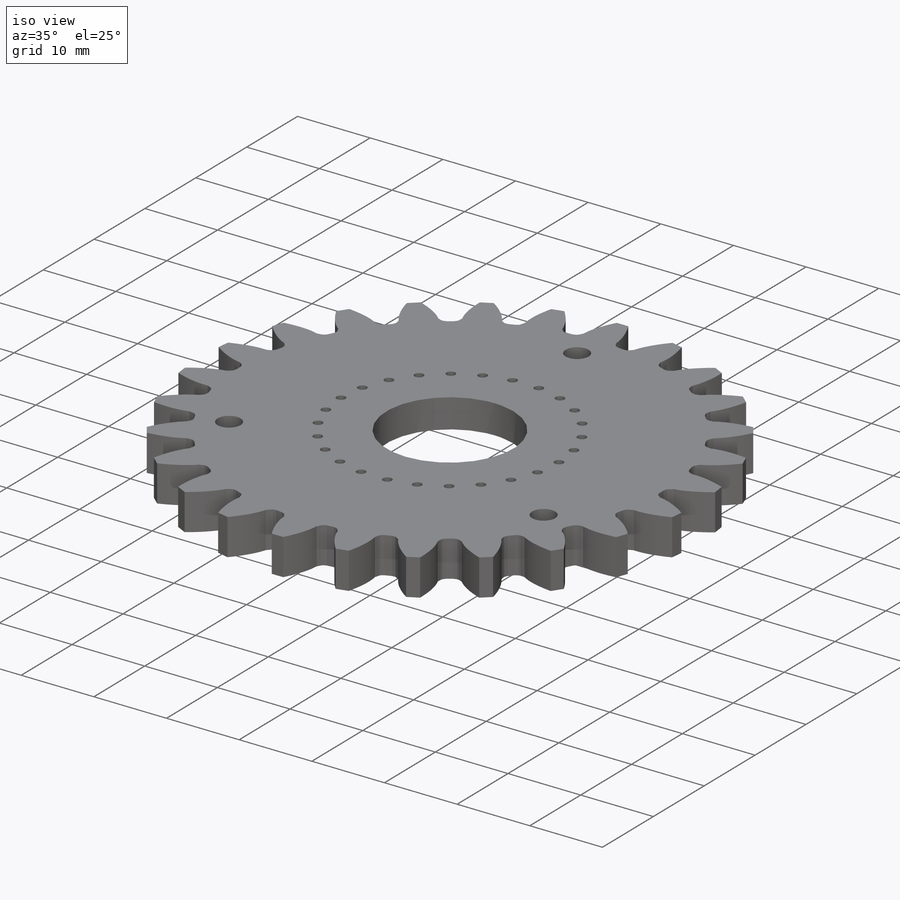
[diagram: iso view]
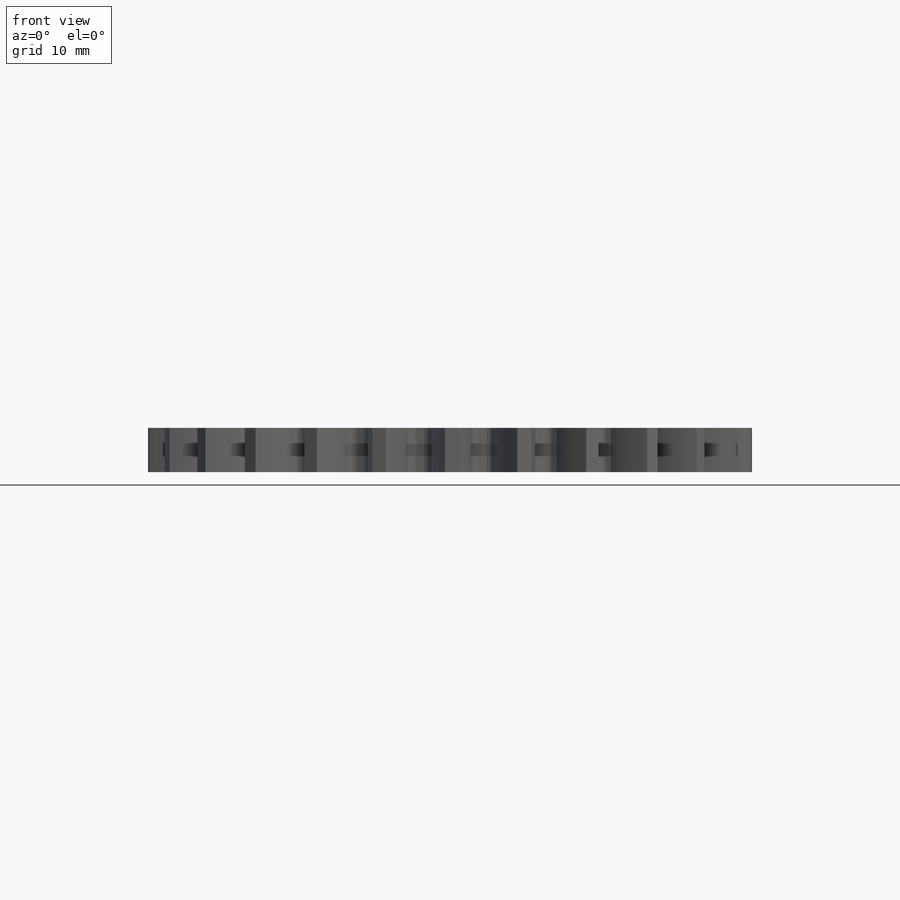
[diagram: front view]
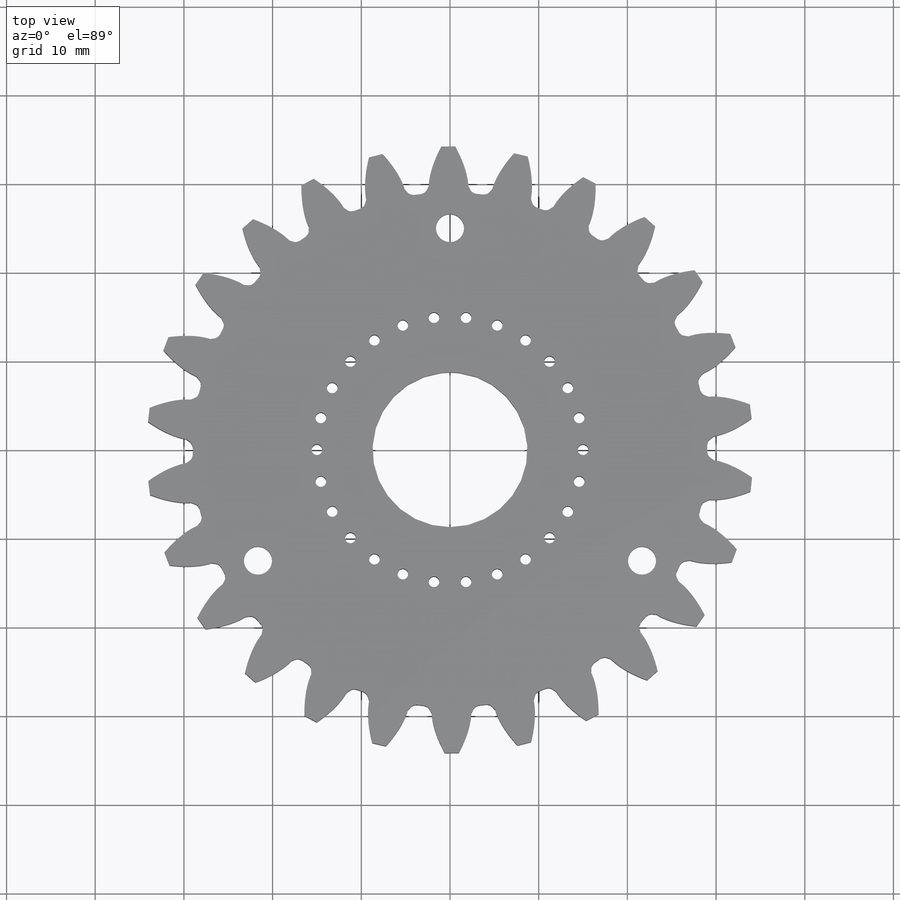
[diagram: top view]
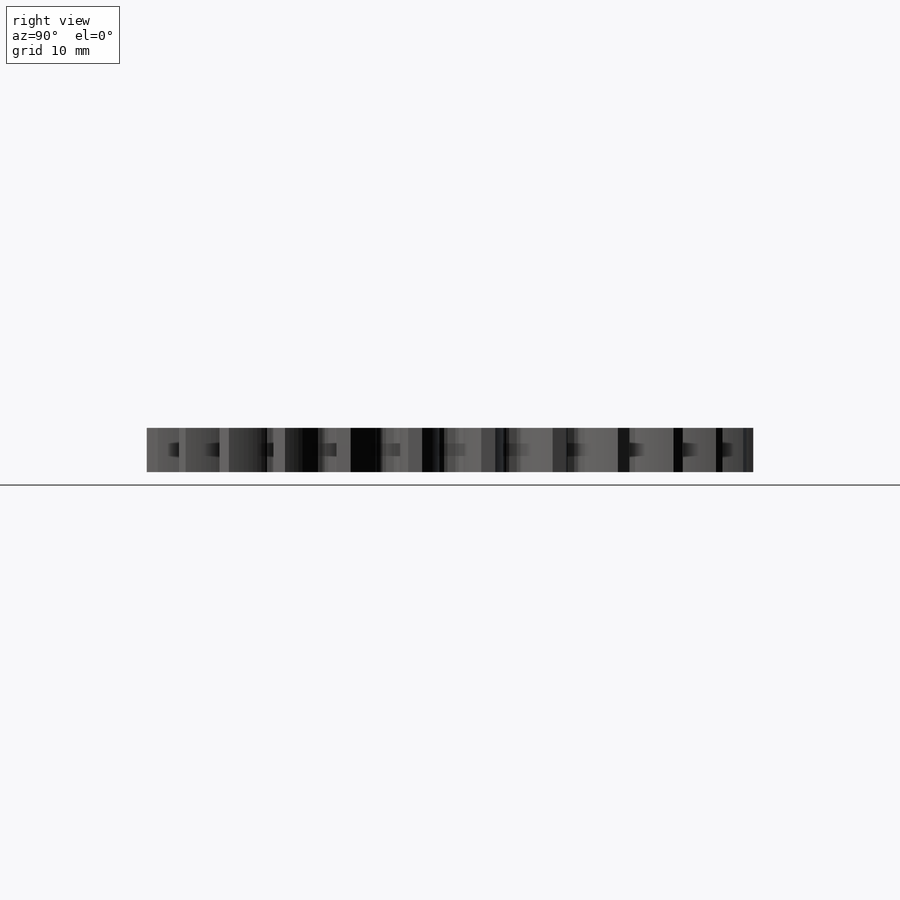
[diagram: right view]
SOLIDWORKS PART (.sldprt)
format: sldprt  version: not decoded by parser v0  size: 1,607,168 bytes
history: native  units: mm
features: sketch x8, cut_extrude x6, extrude x2, material x1, pattern_circular x1 (+12 scaffold rows collapsed)
feature tree (30):
  scaffold x12  (default folders/planes/origin — collapsed)
  material  "1060 Alloy"
  sketch  "Sketch1"  dims[c1.D1=60.0mm c1.D2=~52.323702mm c2.D1=62.5mm c2.D4=57.0mm c2.D5=62.5mm c2.D2=1.5mm c2.D3=~48.948677mm c3.D3=~13.846154deg c3.D4=0.75mm]
  extrude  "Extrude ratchet edge"  Depth=10mm
  pattern_circular  "Pattern edge to form gear"  Count=26 Angle=13.846154deg
  sketch  "Sketch7"  dims[D1=17.4625mm]
  sketch  "Sketch12"
  extrude  "Boss-Extrude1"  Depth=5mm
  sketch  "Sketch10"  dims[D1=2.0mm]
  cut_extrude  "Cut-Extrude1"  Depth=1mm
  cut_extrude  "Cut bearing hole"  [1 undecoded]
  sketch  "Sketch11"  dims[c1.D2=27.5mm c1.D3=27.5mm c1.D1=2.0mm c2.D2=2.0mm c2.D3=2.0mm c2.D4=2.0mm]
  cut_extrude  "Cut-Extrude2"  Depth=1mm
  sketch  "pin holes"  dims[D1=1.2mm D2=15.0mm D3=26.0]
  cut_extrude  "Pin holes cut"  [1 undecoded]
  sketch  "Sketch13"  dims[D1=3.175mm D2=25.0mm D3=3.0]
  cut_extrude  "Cut-Extrude3"  [1 undecoded]
  sketch  "Sketch14"
  cut_extrude  "Cut-Extrude4"  [1 undecoded]
decode coverage: 11 of 17 modeling features carry decoded parameters
note: ~ marks probable driven/reference dimensions
note: 4 parameter values undecoded
summary: no parameter record found for 4 features
note: suppression state not decoded; provenance and decode notes live in map.json
